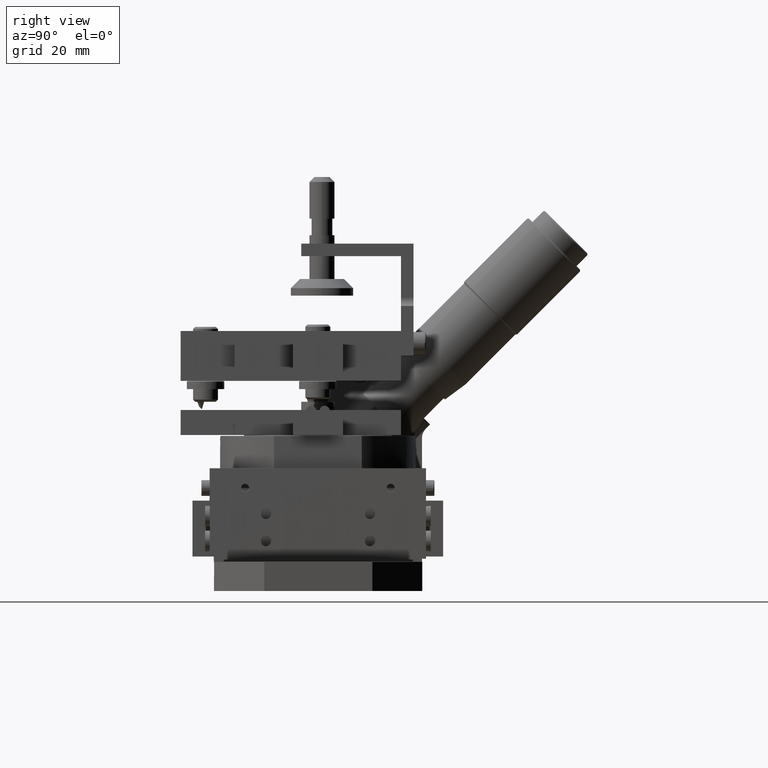
[diagram: clean part render]
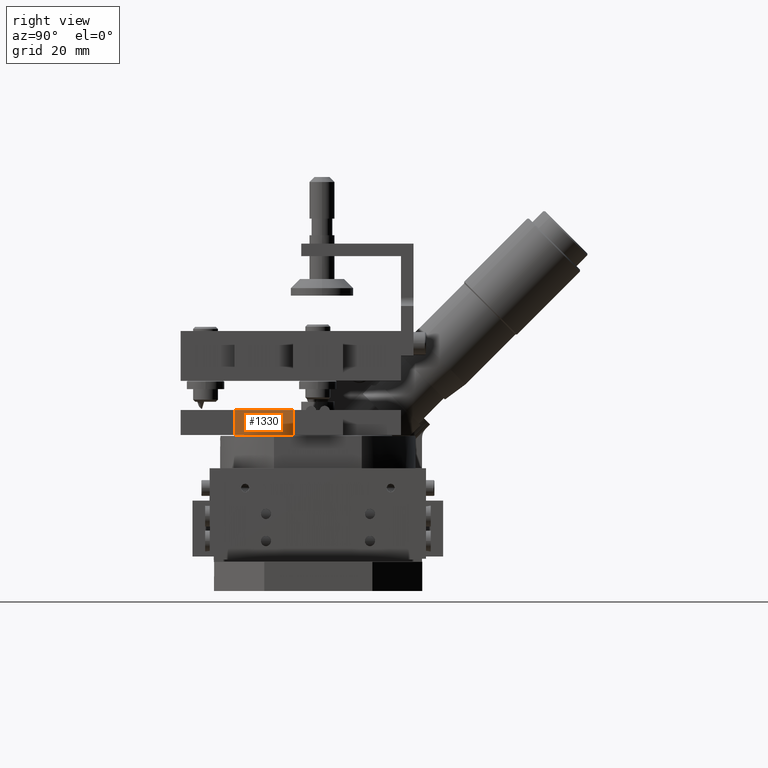
[diagram: same view with one face highlighted and labeled with its STEP entity id]
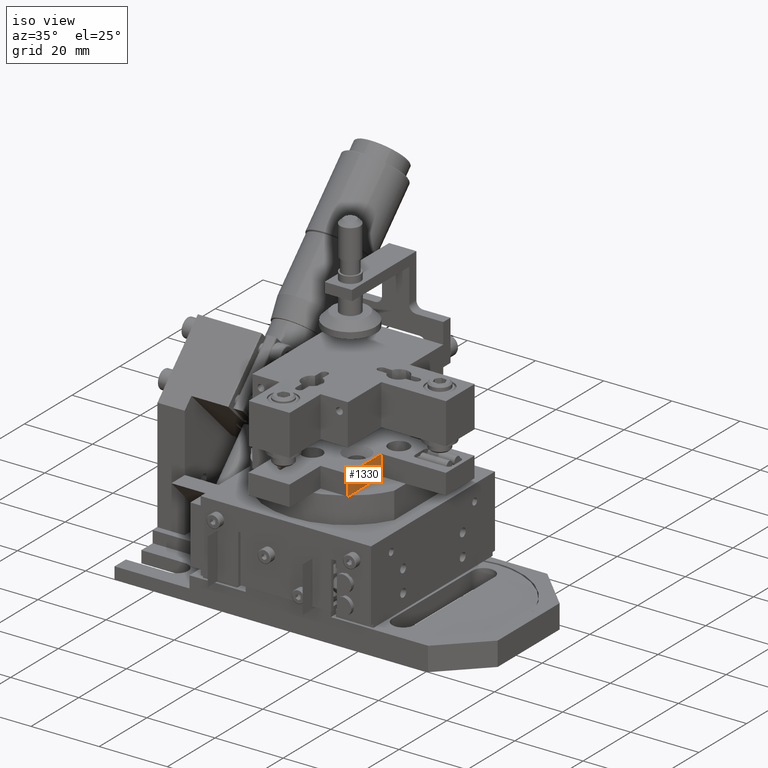
[diagram: same view with one face highlighted and labeled with its STEP entity id]
A machine part, right view. The second image highlights one B-rep face of the part: STEP entity #1330.
A second angle (iso view) of the same face is appended — the face is thin or edge-on in the first view.
In plain terms, the highlighted face is a freeform B-spline surface patch.
Its self-contained STEP definition (entity closure, byte-faithful):
#1330=ADVANCED_FACE('',(#2534),#42765,.T.);
#2534=FACE_OUTER_BOUND('',#3831,.T.);
#3831=EDGE_LOOP('',(#7087,#7088,#7089,#7090,#7091));
#7087=ORIENTED_EDGE('',*,*,#34629,.F.);
#7088=ORIENTED_EDGE('',*,*,#35792,.T.);
#7089=ORIENTED_EDGE('',*,*,#35793,.T.);
#7090=ORIENTED_EDGE('',*,*,#35742,.F.);
#7091=ORIENTED_EDGE('',*,*,#35790,.F.);
#11379=PCURVE('',#42607,#17782);
#13398=PCURVE('',#42753,#19801);
#13486=PCURVE('',#42764,#19889);
#13490=PCURVE('',#42765,#19893);
#13491=PCURVE('',#42765,#19894);
#13492=PCURVE('',#42765,#19895);
#13493=PCURVE('',#42765,#19896);
#13494=PCURVE('',#42765,#19897);
#13498=PCURVE('',#42766,#19901);
#13705=PCURVE('',#42794,#20108);
#17782=DEFINITIONAL_REPRESENTATION('',(#24242),#93713);
#19801=DEFINITIONAL_REPRESENTATION('',(#26496),#93713);
#19889=DEFINITIONAL_REPRESENTATION('',(#26592),#93713);
#19893=DEFINITIONAL_REPRESENTATION('',(#26597),#93713);
#19894=DEFINITIONAL_REPRESENTATION('',(#26599),#93713);
#19895=DEFINITIONAL_REPRESENTATION('',(#26601),#93713);
#19896=DEFINITIONAL_REPRESENTATION('',(#26602),#93713);
#19897=DEFINITIONAL_REPRESENTATION('',(#26603),#93713);
#19901=DEFINITIONAL_REPRESENTATION('',(#26609),#93713);
#20108=DEFINITIONAL_REPRESENTATION('',(#26857),#93713);
#24241=B_SPLINE_CURVE_WITH_KNOTS('',1,(#52501,#52502),.UNSPECIFIED.,.F.,
 .F.,(2,2),(0.,13.9999999999997),.UNSPECIFIED.);
#24242=B_SPLINE_CURVE_WITH_KNOTS('',1,(#52503,#52504),.UNSPECIFIED.,.F.,
 .F.,(2,2),(0.,13.9999999999997),.UNSPECIFIED.);
#26495=B_SPLINE_CURVE_WITH_KNOTS('',1,(#62135,#62136),.UNSPECIFIED.,.F.,
 .F.,(2,2),(0.,4.8300507847393),.UNSPECIFIED.);
#26496=B_SPLINE_CURVE_WITH_KNOTS('',1,(#62137,#62138),.UNSPECIFIED.,.F.,
 .F.,(2,2),(0.,4.8300507847393),.UNSPECIFIED.);
#26591=B_SPLINE_CURVE_WITH_KNOTS('',1,(#62501,#62502),.UNSPECIFIED.,.F.,
 .F.,(2,2),(0.,6.),.UNSPECIFIED.);
#26592=B_SPLINE_CURVE_WITH_KNOTS('',1,(#62503,#62504),.UNSPECIFIED.,.F.,
 .F.,(2,2),(0.,6.),.UNSPECIFIED.);
#26597=B_SPLINE_CURVE_WITH_KNOTS('',1,(#62513,#62514),.UNSPECIFIED.,.F.,
 .F.,(2,2),(0.,13.9999999999997),.UNSPECIFIED.);
#26598=B_SPLINE_CURVE_WITH_KNOTS('',1,(#62515,#62516),.UNSPECIFIED.,.F.,
 .F.,(2,2),(0.,6.),.UNSPECIFIED.);
#26599=B_SPLINE_CURVE_WITH_KNOTS('',1,(#62517,#62518),.UNSPECIFIED.,.F.,
 .F.,(2,2),(0.,6.),.UNSPECIFIED.);
#26600=B_SPLINE_CURVE_WITH_KNOTS('',1,(#62519,#62520),.UNSPECIFIED.,.F.,
 .F.,(2,2),(-9.16994921526038,0.),.UNSPECIFIED.);
#26601=B_SPLINE_CURVE_WITH_KNOTS('',1,(#62521,#62522),.UNSPECIFIED.,.F.,
 .F.,(2,2),(-9.16994921526038,0.),.UNSPECIFIED.);
#26602=B_SPLINE_CURVE_WITH_KNOTS('',1,(#62523,#62524),.UNSPECIFIED.,.F.,
 .F.,(2,2),(0.,4.8300507847393),.UNSPECIFIED.);
#26603=B_SPLINE_CURVE_WITH_KNOTS('',1,(#62525,#62526),.UNSPECIFIED.,.F.,
 .F.,(2,2),(0.,6.),.UNSPECIFIED.);
#26609=B_SPLINE_CURVE_WITH_KNOTS('',1,(#62537,#62538),.UNSPECIFIED.,.F.,
 .F.,(2,2),(0.,6.),.UNSPECIFIED.);
#26857=B_SPLINE_CURVE_WITH_KNOTS('',1,(#63248,#63249),.UNSPECIFIED.,.F.,
 .F.,(2,2),(-9.16994921526038,0.),.UNSPECIFIED.);
#31289=SURFACE_CURVE('',#24241,(#11379,#13490),.PCURVE_S1.);
#32402=SURFACE_CURVE('',#26495,(#13398,#13493),.PCURVE_S1.);
#32450=SURFACE_CURVE('',#26591,(#13486,#13494),.PCURVE_S1.);
#32452=SURFACE_CURVE('',#26598,(#13491,#13498),.PCURVE_S1.);
#32453=SURFACE_CURVE('',#26600,(#13492,#13705),.PCURVE_S1.);
#34629=EDGE_CURVE('',#40446,#40447,#31289,.T.);
#35742=EDGE_CURVE('',#41195,#41187,#32402,.T.);
#35790=EDGE_CURVE('',#40447,#41195,#32450,.T.);
#35792=EDGE_CURVE('',#40446,#41225,#32452,.T.);
#35793=EDGE_CURVE('',#41225,#41187,#32453,.T.);
#40446=VERTEX_POINT('',#50561);
#40447=VERTEX_POINT('',#50562);
#41187=VERTEX_POINT('',#51302);
#41195=VERTEX_POINT('',#51310);
#41225=VERTEX_POINT('',#51340);
#42607=B_SPLINE_SURFACE_WITH_KNOTS('',1,1,((#44796,#44797),(#44798,#44799)),
 .UNSPECIFIED.,.F.,.F.,.F.,(2,2),(2,2),(-18.8302821339671,37.8257320696256),
(-11.4277202525931,52.4258674166046),.UNSPECIFIED.);
#42753=B_SPLINE_SURFACE_WITH_KNOTS('',1,1,((#48837,#48838),(#48839,#48840)),
 .UNSPECIFIED.,.F.,.F.,.F.,(2,2),(2,2),(1.54209120830083,8.23094641144758),
(-20.1312778636206,-13.4430456373706),.UNSPECIFIED.);
#42764=B_SPLINE_SURFACE_WITH_KNOTS('',1,1,((#49025,#49026),(#49027,#49028)),
 .UNSPECIFIED.,.F.,.F.,.F.,(2,2),(2,2),(-2.02002021941656,21.0200202194168),
(-0.720000000000005,6.72000000000003),.UNSPECIFIED.);
#42765=B_SPLINE_SURFACE_WITH_KNOTS('',1,1,((#49029,#49030),(#49031,#49032)),
 .UNSPECIFIED.,.F.,.F.,.F.,(2,2),(2,2),(-1.52002021941649,15.5200202194162),
(-0.720000000000034,6.72),.UNSPECIFIED.);
#42766=B_SPLINE_SURFACE_WITH_KNOTS('',1,1,((#49033,#49034),(#49035,#49036)),
 .UNSPECIFIED.,.F.,.F.,.F.,(2,2),(2,2),(-0.920020219416485,8.92002021941605),
(-0.720000000000003,6.72000000000001),.UNSPECIFIED.);
#42794=B_SPLINE_SURFACE_WITH_KNOTS('',1,1,((#49401,#49402),(#49403,#49404)),
 .UNSPECIFIED.,.F.,.F.,.F.,(2,2),(2,2),(4.2625085745875,31.1161937663479),
(-11.3170935252639,22.5292839194309),.UNSPECIFIED.);
#44796=CARTESIAN_POINT('',(201.520608655297,52.6139220482595,-122.268334740517));
#44797=CARTESIAN_POINT('',(201.509848729675,52.6139220482594,-58.4147479778931));
#44798=CARTESIAN_POINT('',(258.176622054504,52.6139220482596,-122.258787673216));
#44799=CARTESIAN_POINT('',(258.165862128882,52.6139220482594,-58.4052009105925));
#48837=CARTESIAN_POINT('',(235.672016094335,58.6139220482595,-96.9793992386281));
#48838=CARTESIAN_POINT('',(230.941924869898,58.6139220482595,-92.2509018746913));
#48839=CARTESIAN_POINT('',(240.400953895224,58.6139220482595,-92.2488674287795));
#48840=CARTESIAN_POINT('',(235.670862670787,58.6139220482595,-87.5203700648426));
#49025=CARTESIAN_POINT('',(255.365445870541,51.8939220482595,-89.8315406696616));
#49026=CARTESIAN_POINT('',(255.365445870541,59.3339220482595,-89.8315406696616));
#49027=CARTESIAN_POINT('',(232.325405758823,51.8939220482595,-89.8354231315638));
#49028=CARTESIAN_POINT('',(232.325405758823,59.3339220482595,-89.8354231315638));
#49029=CARTESIAN_POINT('',(234.345169811963,51.8939220482595,-88.3150625414634));
#49030=CARTESIAN_POINT('',(234.345169811963,59.3339220482595,-88.3150625414634));
#49031=CARTESIAN_POINT('',(234.348041217853,51.8939220482595,-105.355102738367));
#49032=CARTESIAN_POINT('',(234.348041217853,59.3339220482595,-105.355102738367));
#49033=CARTESIAN_POINT('',(235.26780528661,51.8939220482595,-103.834927508535));
#49034=CARTESIAN_POINT('',(235.26780528661,59.3339220482595,-103.834927508535));
#49035=CARTESIAN_POINT('',(225.427764987484,51.8939220482595,-103.83658564721));
#49036=CARTESIAN_POINT('',(225.427764987484,59.3339220482595,-103.83658564721));
#49401=CARTESIAN_POINT('',(237.267938601754,58.6139220482595,-92.3220988785317));
#49402=CARTESIAN_POINT('',(203.4215616376,58.6139220482595,-92.3278023091011));
#49403=CARTESIAN_POINT('',(237.272463698399,58.6139220482596,-119.175783689032));
#49404=CARTESIAN_POINT('',(203.426086734245,58.6139220482595,-119.181487119601));
#50561=CARTESIAN_POINT('',(234.347785080256,52.6139220482595,-103.835082540531));
#50562=CARTESIAN_POINT('',(234.34542594956,52.6139220482595,-89.8350827392991));
#51302=CARTESIAN_POINT('',(234.346239858208,58.6139220482595,-94.6651334554628));
#51310=CARTESIAN_POINT('',(234.34542594956,58.6139220482595,-89.8350827392991));
#51340=CARTESIAN_POINT('',(234.347785080256,58.6139220482595,-103.835082540531));
#52501=CARTESIAN_POINT('',(234.347785080256,52.6139220482595,-103.835082540531));
#52502=CARTESIAN_POINT('',(234.34542594956,52.6139220482595,-89.8350827392991));
#52503=CARTESIAN_POINT('',(13.9999999999997,7.00000000000009));
#52504=CARTESIAN_POINT('',(13.9999999999995,20.9999999999998));
#62135=CARTESIAN_POINT('',(234.34542594956,58.6139220482595,-89.8350827392991));
#62136=CARTESIAN_POINT('',(234.346239858208,58.6139220482595,-94.6651334554628));
#62137=CARTESIAN_POINT('',(5.65685424949243,-14.1421356237299));
#62138=CARTESIAN_POINT('',(2.24149258612805,-17.5574972870946));
#62501=CARTESIAN_POINT('',(234.34542594956,52.6139220482595,-89.8350827392991));
#62502=CARTESIAN_POINT('',(234.34542594956,58.6139220482595,-89.8350827392991));
#62503=CARTESIAN_POINT('',(19.0000000000003,2.55595927875406E-14));
#62504=CARTESIAN_POINT('',(19.0000000000003,6.00000000000003));
#62513=CARTESIAN_POINT('',(13.9999999999997,-2.87460034852787E-14));
#62514=CARTESIAN_POINT('',(0.,0.));
#62515=CARTESIAN_POINT('',(234.347785080256,52.6139220482595,-103.835082540531));
#62516=CARTESIAN_POINT('',(234.347785080256,58.6139220482595,-103.835082540531));
#62517=CARTESIAN_POINT('',(13.9999999999997,-2.87460034852787E-14));
#62518=CARTESIAN_POINT('',(13.9999999999997,5.99999999999997));
#62519=CARTESIAN_POINT('',(234.347785080256,58.6139220482595,-103.835082540531));
#62520=CARTESIAN_POINT('',(234.346239858208,58.6139220482595,-94.6651334554628));
#62521=CARTESIAN_POINT('',(13.9999999999997,5.99999999999997));
#62522=CARTESIAN_POINT('',(4.83005078473931,5.99999999999999));
#62523=CARTESIAN_POINT('',(1.23197157794054E-14,6.));
#62524=CARTESIAN_POINT('',(4.83005078473931,5.99999999999999));
#62525=CARTESIAN_POINT('',(0.,0.));
#62526=CARTESIAN_POINT('',(1.23197157794054E-14,6.));
#62537=CARTESIAN_POINT('',(0.,0.));
#62538=CARTESIAN_POINT('',(-8.07384501564374E-15,6.));
#63248=CARTESIAN_POINT('',(15.7749999999997,-8.3949999999995));
#63249=CARTESIAN_POINT('',(6.60505078473928,-8.39499999999952));
#93713=(
GEOMETRIC_REPRESENTATION_CONTEXT(2)
PARAMETRIC_REPRESENTATION_CONTEXT()
REPRESENTATION_CONTEXT('pspace','')
);